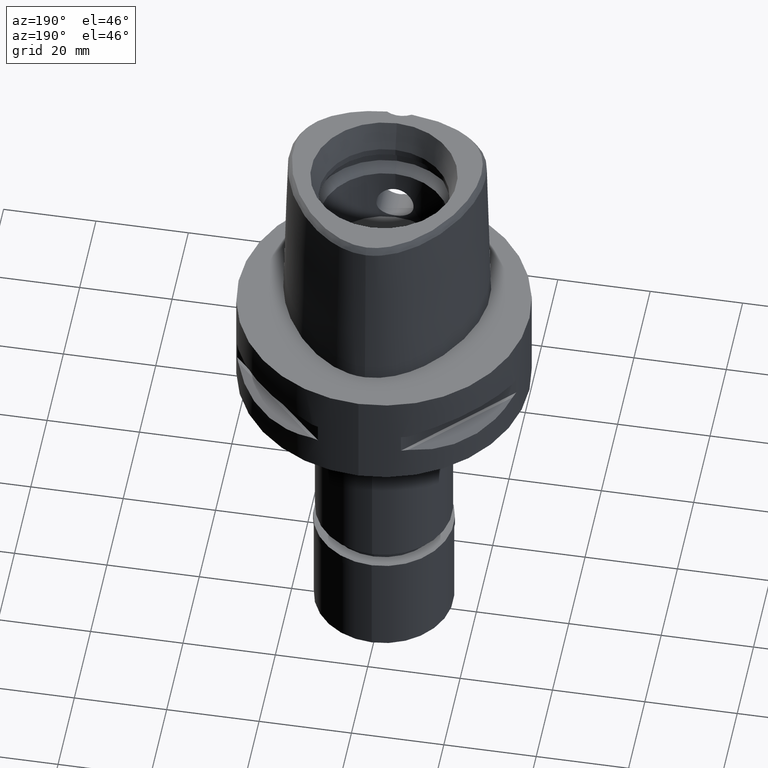
[diagram: clean part render]
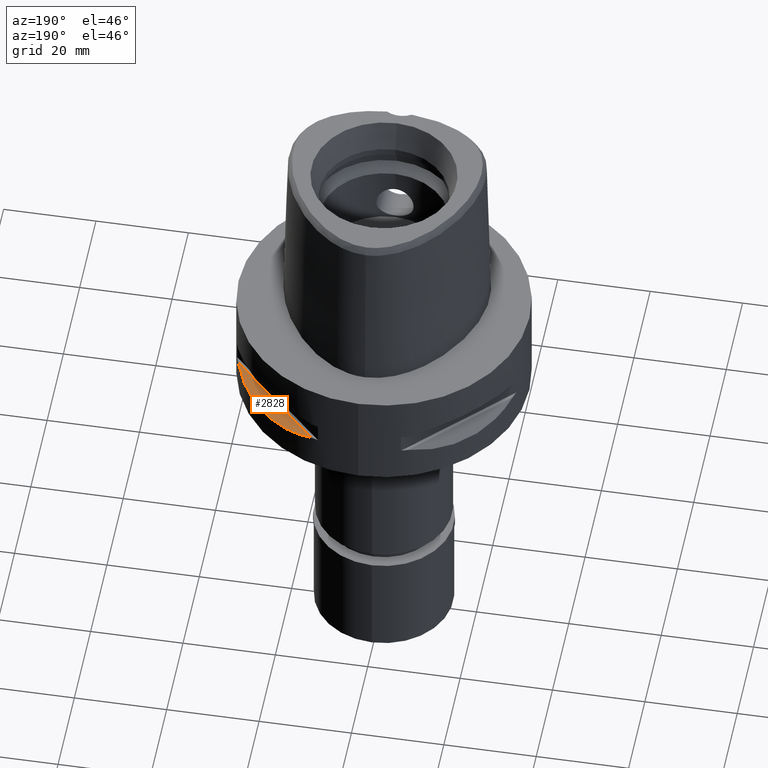
[diagram: same view with one face highlighted and labeled with its STEP entity id]
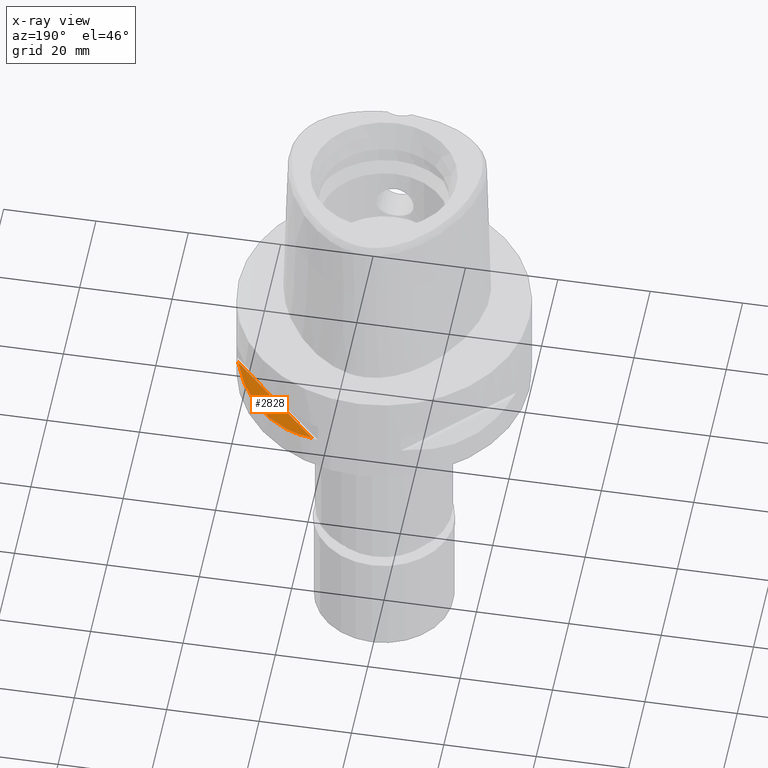
[diagram: x-ray of the same camera — body ghosted, the highlighted face saturated]
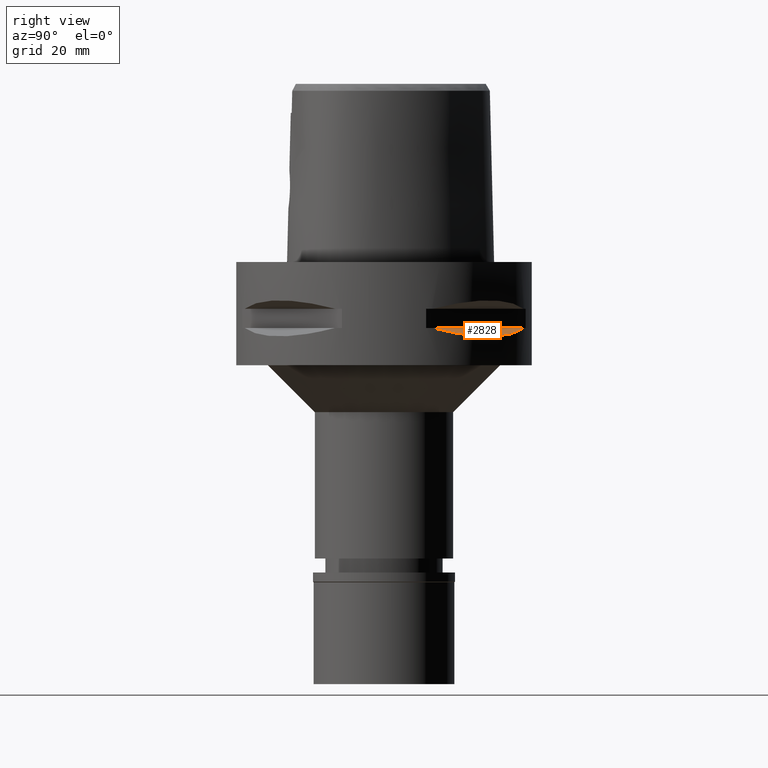
[diagram: same view with one face highlighted and labeled with its STEP entity id]
A machine part, auxiliary view. The second image highlights one B-rep face of the part: STEP entity #2828.
The next image is the same camera in x-ray: the body ghosted, the highlighted face saturated — about 0% of this face is hidden behind the body in this view.
A second angle (right view) of the same face is appended — the face is thin or edge-on in the first view.
In plain terms, the highlighted planar face has unit normal (-0.3536, -0.3536, -0.866).
Its self-contained STEP definition (entity closure, byte-faithful):
#91 = CARTESIAN_POINT ( 'NONE',  ( 29.71690375017999841, 10.44775724750000023, -14.05000000000000071 ) ) ;
#157 = B_SPLINE_CURVE_WITH_KNOTS ( 'NONE', 3,
 ( #2093, #3286, #4805, #2844, #4485, #4882, #4084, #4384, #3632, #196, #1363, #2918, #240, #1719, #3730, #3708, #4458, #3262, #993, #2517, #3360, #4856, #292, #2149 ),
 .UNSPECIFIED., .F., .F.,
 ( 4, 1, 1, 1, 1, 1, 2, 2, 2, 1, 1, 1, 1, 1, 2, 2, 4 ),
 ( 0.0000000000000000000, 0.1250000000000017486, 0.1875000000000026090, 0.2187500000000033029, 0.2343750000000038858, 0.2421875000000042744, 0.2460937500000044686, 0.2500000000000046629, 0.5000000000000101030, 0.6250000000000126565, 0.6875000000000138778, 0.7187500000000146549, 0.7343750000000150990, 0.7421875000000150990, 0.7460937500000149880, 0.7500000000000149880, 1.000000000000000000 ),
 .UNSPECIFIED. ) ;
#196 = CARTESIAN_POINT ( 'NONE',  ( 26.58330558444649583, 16.89910283486696940, -15.40446471307537202 ) ) ;
#240 = CARTESIAN_POINT ( 'NONE',  ( 21.46242677077769656, 23.08532645888790213, -15.83938991065623014 ) ) ;
#292 = CARTESIAN_POINT ( 'NONE',  ( 12.73197616787390629, 28.91382665369116722, -14.65467361753813513 ) ) ;
#297 = VECTOR ( 'NONE', #2038, 1000.000000000000114 ) ;
#360 = AXIS2_PLACEMENT_3D ( 'NONE', #3152, #4182, #1521 ) ;
#640 = EDGE_LOOP ( 'NONE', ( #4763, #3657 ) ) ;
#786 = CARTESIAN_POINT ( 'NONE',  ( 29.71690375017999841, 10.44775724750000023, -14.05000000000000071 ) ) ;
#793 = CARTESIAN_POINT ( 'NONE',  ( 10.44775724750000023, 29.71690375017999841, -14.05000000000000071 ) ) ;
#993 = CARTESIAN_POINT ( 'NONE',  ( 17.05047092244371854, 26.48642424310703447, -15.42670883407968674 ) ) ;
#1363 = CARTESIAN_POINT ( 'NONE',  ( 25.32725744466094753, 18.86897208075735222, -15.69588095933972838 ) ) ;
#1521 = DIRECTION ( 'NONE',  ( 0.0000000000000000000, -0.9258200997725358761, 0.3779644730092654448 ) ) ;
#1590 = PLANE ( 'NONE',  #360 ) ;
#1719 = CARTESIAN_POINT ( 'NONE',  ( 20.18579225685413903, 24.23018836746430082, -15.78559396979327367 ) ) ;
#1992 = FACE_OUTER_BOUND ( 'NONE', #640, .T. ) ;
#2037 = VERTEX_POINT ( 'NONE', #793 ) ;
#2038 = DIRECTION ( 'NONE',  ( -0.7071067811865474617, 0.7071067811865474617, 0.0000000000000000000 ) ) ;
#2093 = CARTESIAN_POINT ( 'NONE',  ( 29.71690375017999841, 10.44775724750000023, -14.05000000000000071 ) ) ;
#2149 = CARTESIAN_POINT ( 'NONE',  ( 10.44775724750000023, 29.71690375017999841, -14.05000000000000071 ) ) ;
#2374 = LINE ( 'NONE', #91, #297 ) ;
#2517 = CARTESIAN_POINT ( 'NONE',  ( 16.98999780422225214, 26.52527364208797778, -15.41788098766626369 ) ) ;
#2625 = VERTEX_POINT ( 'NONE', #786 ) ;
#2828 = ADVANCED_FACE ( 'NONE', ( #1992 ), #1590, .F. ) ;
#2844 = CARTESIAN_POINT ( 'NONE',  ( 27.64634172017876068, 15.11986997311391612, -15.11207862404153524 ) ) ;
#2918 = CARTESIAN_POINT ( 'NONE',  ( 23.89673728057072211, 20.65093790435025767, -15.83935804902266931 ) ) ;
#3152 = CARTESIAN_POINT ( 'NONE',  ( 7.707961828074000543, 32.45669916960000023, -14.05000000000000071 ) ) ;
#3262 = CARTESIAN_POINT ( 'NONE',  ( 17.14106442934815533, 26.42800887047804181, -15.43984550238795350 ) ) ;
#3286 = CARTESIAN_POINT ( 'NONE',  ( 29.31542262584231651, 11.58970337495594194, -14.35229357167384912 ) ) ;
#3360 = CARTESIAN_POINT ( 'NONE',  ( 16.96123479565122238, 26.54368690921823060, -15.41365572341632095 ) ) ;
#3632 = CARTESIAN_POINT ( 'NONE',  ( 26.60451452154907059, 16.86571563436881149, -15.39949295786330197 ) ) ;
#3657 = ORIENTED_EDGE ( 'NONE', *, *, #4936, .T. ) ;
#3708 = CARTESIAN_POINT ( 'NONE',  ( 17.76952662671760308, 26.01217882835248929, -15.52665221626392800 ) ) ;
#3730 = CARTESIAN_POINT ( 'NONE',  ( 18.59229662064599609, 25.43927894892505392, -15.62866126334696482 ) ) ;
#4084 = CARTESIAN_POINT ( 'NONE',  ( 26.70521063584596888, 16.70616724746230730, -15.37546661818052307 ) ) ;
#4182 = DIRECTION ( 'NONE',  ( -0.3535533905933054277, -0.3535533905933049836, -0.8660254037844130615 ) ) ;
#4384 = CARTESIAN_POINT ( 'NONE',  ( 26.64486562695897121, 16.80193241490862022, -15.38992683736031708 ) ) ;
#4458 = CARTESIAN_POINT ( 'NONE',  ( 17.35163608579731687, 26.29071741524046146, -15.46976201925743055 ) ) ;
#4485 = CARTESIAN_POINT ( 'NONE',  ( 27.11872488589068553, 16.03138450079309862, -15.26880420108148506 ) ) ;
#4723 = EDGE_CURVE ( 'NONE', #2625, #2037, #2374, .T. ) ;
#4763 = ORIENTED_EDGE ( 'NONE', *, *, #4723, .F. ) ;
#4805 = CARTESIAN_POINT ( 'NONE',  ( 28.62019653468112068, 13.25636937905766999, -14.74888225542022369 ) ) ;
#4856 = CARTESIAN_POINT ( 'NONE',  ( 14.89252659056515427, 27.86285265926851551, -15.10765629751784012 ) ) ;
#4882 = CARTESIAN_POINT ( 'NONE',  ( 26.84474411198741350, 16.48208282229545318, -15.34094883778379348 ) ) ;
#4936 = EDGE_CURVE ( 'NONE', #2625, #2037, #157, .T. ) ;